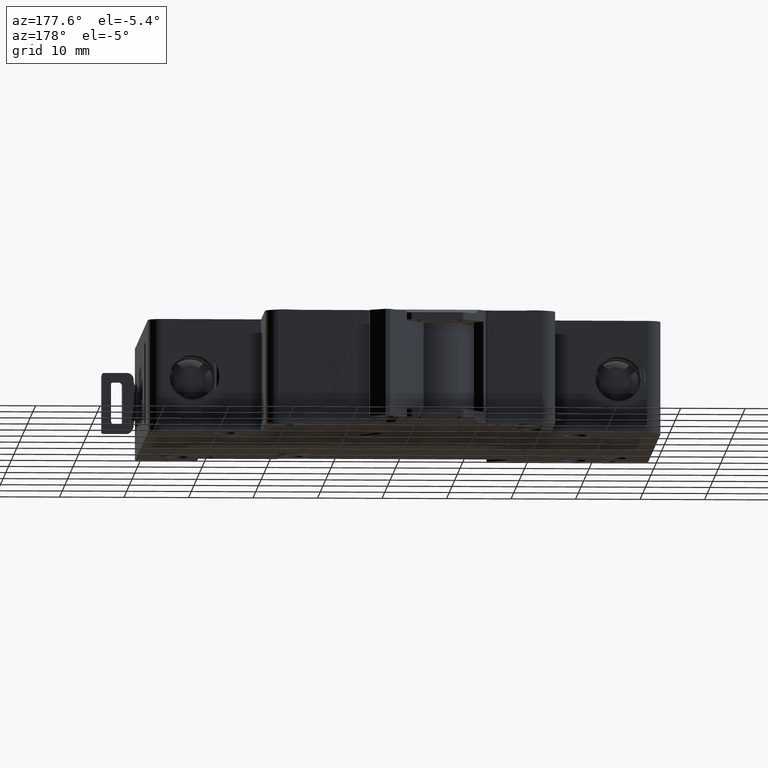
[diagram: clean part render]
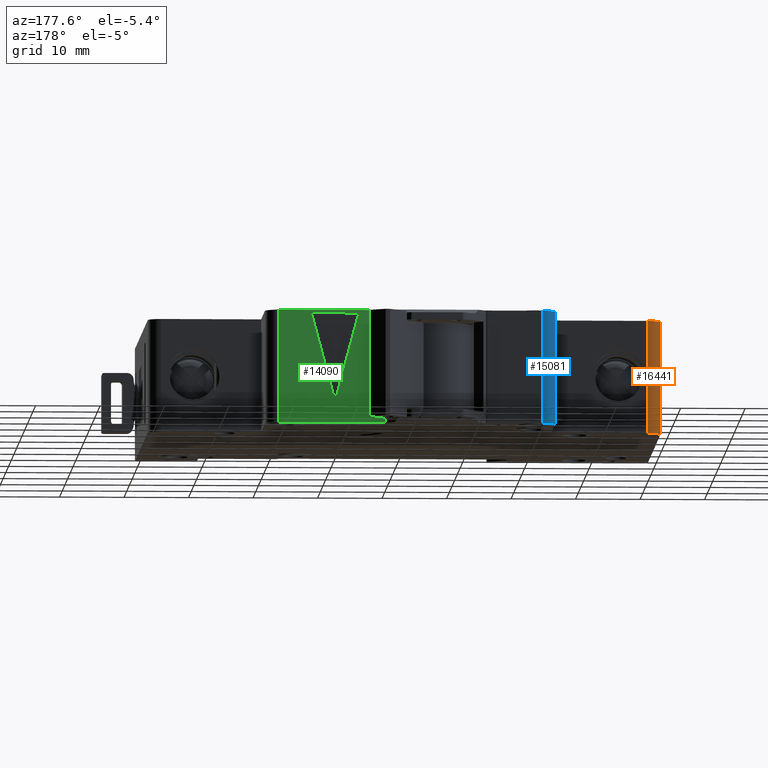
[diagram: same view with three faces highlighted in distinct colors, each labeled with its STEP entity id]
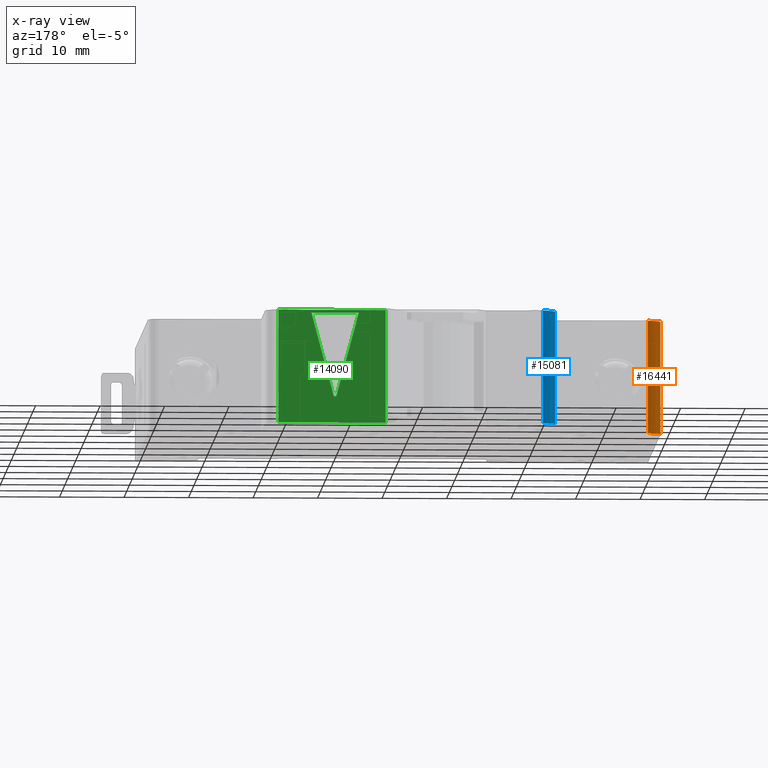
[diagram: x-ray of the same camera — body ghosted, the three highlighted faces saturated]
A machine part, auxiliary view with three faces highlighted in distinct colors.
The next image is the same camera in x-ray (body ghosted, the three faces saturated) — at least one of them is partly hidden behind the body in this view.
Their STEP definitions:

[orange] entity #16441 — the highlighted cylindrical surface (edge-blend (fillet) strip) has radius 2 mm, axis along (0, 0, 1).
#1033 = ORIENTED_EDGE ( 'NONE', *, *, #8266, .F. ) ;
#1095 = VECTOR ( 'NONE', #6787, 1000.000000000000000 ) ;
#1679 = DIRECTION ( 'NONE',  ( 0.0000000000000000000, -0.0000000000000000000, -1.000000000000000000 ) ) ;
#2830 = DIRECTION ( 'NONE',  ( 9.912705577014834400E-017, 1.281166259734572500E-031, 1.000000000000000000 ) ) ;
#3366 = CARTESIAN_POINT ( 'NONE',  ( 2.512500000000001500, 47.50000000000729000, 8.750000000000000000 ) ) ;
#3376 = CARTESIAN_POINT ( 'NONE',  ( 0.5124999999999999600, 47.50000000000729000, -8.749999999996021000 ) ) ;
#4652 = LINE ( 'NONE', #6737, #1095 ) ;
#4703 = DIRECTION ( 'NONE',  ( 1.000000000000000000, 0.0000000000000000000, 0.0000000000000000000 ) ) ;
#5454 = VECTOR ( 'NONE', #2830, 1000.000000000000000 ) ;
#5569 = VERTEX_POINT ( 'NONE', #3376 ) ;
#5706 = EDGE_LOOP ( 'NONE', ( #8901, #11539, #1033, #10463 ) ) ;
#5845 = EDGE_CURVE ( 'NONE', #13909, #5569, #4652, .T. ) ;
#6160 = CYLINDRICAL_SURFACE ( 'NONE', #11010, 2.000000000000000000 ) ;
#6322 = LINE ( 'NONE', #6842, #5454 ) ;
#6575 = DIRECTION ( 'NONE',  ( 1.000000000000000000, 0.0000000000000000000, -9.912705577014836800E-017 ) ) ;
#6599 = FACE_OUTER_BOUND ( 'NONE', #5706, .T. ) ;
#6737 = CARTESIAN_POINT ( 'NONE',  ( 0.5124999999999999600, 47.50000000000729000, -8.749999999996021000 ) ) ;
#6787 = DIRECTION ( 'NONE',  ( -9.912705577014834400E-017, -1.281166259734572500E-031, -1.000000000000000000 ) ) ;
#6842 = CARTESIAN_POINT ( 'NONE',  ( 2.512499999999999300, 49.50000000000729700, 8.749999999996017400 ) ) ;
#8266 = EDGE_CURVE ( 'NONE', #5569, #12456, #9526, .T. ) ;
#8341 = CARTESIAN_POINT ( 'NONE',  ( 0.5125000000000016200, 47.50000000000729000, 8.749999999996017400 ) ) ;
#8901 = ORIENTED_EDGE ( 'NONE', *, *, #9442, .F. ) ;
#9166 = CARTESIAN_POINT ( 'NONE',  ( 2.512500000000001100, 47.50000000000729000, -2.490567276225038300E-016 ) ) ;
#9442 = EDGE_CURVE ( 'NONE', #11936, #13909, #10512, .T. ) ;
#9526 = CIRCLE ( 'NONE', #12586, 2.000000000000000000 ) ;
#9622 = CARTESIAN_POINT ( 'NONE',  ( 2.512500000000000200, 47.50000000000729000, -8.750000000000000000 ) ) ;
#9972 = CARTESIAN_POINT ( 'NONE',  ( 2.512499999999997500, 49.50000000000729700, -8.750000000000000000 ) ) ;
#10202 = CARTESIAN_POINT ( 'NONE',  ( 2.512499999999999300, 49.50000000000729700, 8.750000000000000000 ) ) ;
#10401 = DIRECTION ( 'NONE',  ( 9.912705577014834400E-017, 1.281166259734572500E-031, 1.000000000000000000 ) ) ;
#10463 = ORIENTED_EDGE ( 'NONE', *, *, #5845, .F. ) ;
#10512 = CIRCLE ( 'NONE', #14280, 2.000000000000000000 ) ;
#10903 = DIRECTION ( 'NONE',  ( 1.000000000000000000, 0.0000000000000000000, 0.0000000000000000000 ) ) ;
#11010 = AXIS2_PLACEMENT_3D ( 'NONE', #9166, #10401, #6575 ) ;
#11539 = ORIENTED_EDGE ( 'NONE', *, *, #16570, .F. ) ;
#11936 = VERTEX_POINT ( 'NONE', #10202 ) ;
#12456 = VERTEX_POINT ( 'NONE', #9972 ) ;
#12496 = DIRECTION ( 'NONE',  ( -0.0000000000000000000, 0.0000000000000000000, 1.000000000000000000 ) ) ;
#12586 = AXIS2_PLACEMENT_3D ( 'NONE', #9622, #1679, #10903 ) ;
#13909 = VERTEX_POINT ( 'NONE', #8341 ) ;
#14280 = AXIS2_PLACEMENT_3D ( 'NONE', #3366, #12496, #4703 ) ;
#16441 = ADVANCED_FACE ( 'NONE', ( #6599 ), #6160, .T. ) ;
#16570 = EDGE_CURVE ( 'NONE', #12456, #11936, #6322, .T. ) ;

[blue] entity #15081 — the highlighted cylindrical surface (edge-blend (fillet) strip) has radius 2 mm, axis along (-0, -0, -1).
#124 = CARTESIAN_POINT ( 'NONE',  ( 17.50000000000000000, 63.50000000000330400, -8.750000000000000000 ) ) ;
#587 = CARTESIAN_POINT ( 'NONE',  ( 19.50000000000000000, 65.50000000000331100, -8.750000000000000000 ) ) ;
#966 = CARTESIAN_POINT ( 'NONE',  ( 17.50000000000000000, 63.50000000000330400, 8.750000000000000000 ) ) ;
#1016 = DIRECTION ( 'NONE',  ( -0.0000000000000000000, 0.0000000000000000000, 1.000000000000000000 ) ) ;
#1415 = CIRCLE ( 'NONE', #8889, 1.999999999999998200 ) ;
#1770 = FACE_OUTER_BOUND ( 'NONE', #13030, .T. ) ;
#1929 = VECTOR ( 'NONE', #2549, 1000.000000000000000 ) ;
#2203 = AXIS2_PLACEMENT_3D ( 'NONE', #2515, #11673, #3854 ) ;
#2359 = LINE ( 'NONE', #16764, #1929 ) ;
#2515 = CARTESIAN_POINT ( 'NONE',  ( 19.50000000000000000, 63.50000000000330400, 8.750000000000000000 ) ) ;
#2549 = DIRECTION ( 'NONE',  ( -0.0000000000000000000, -0.0000000000000000000, -1.000000000000000000 ) ) ;
#3222 = ORIENTED_EDGE ( 'NONE', *, *, #6955, .F. ) ;
#3521 = CARTESIAN_POINT ( 'NONE',  ( 19.50000000000000000, 63.50000000000330400, 8.750000000000000000 ) ) ;
#3854 = DIRECTION ( 'NONE',  ( 1.000000000000000000, 0.0000000000000000000, 0.0000000000000000000 ) ) ;
#4973 = EDGE_CURVE ( 'NONE', #6093, #9768, #9798, .T. ) ;
#5113 = DIRECTION ( 'NONE',  ( -0.0000000000000000000, -0.0000000000000000000, -1.000000000000000000 ) ) ;
#5147 = ORIENTED_EDGE ( 'NONE', *, *, #5771, .T. ) ;
#5771 = EDGE_CURVE ( 'NONE', #9149, #6754, #2359, .T. ) ;
#6093 = VERTEX_POINT ( 'NONE', #966 ) ;
#6754 = VERTEX_POINT ( 'NONE', #587 ) ;
#6955 = EDGE_CURVE ( 'NONE', #9149, #6093, #13926, .T. ) ;
#8889 = AXIS2_PLACEMENT_3D ( 'NONE', #8994, #1016, #10264 ) ;
#8961 = CARTESIAN_POINT ( 'NONE',  ( 19.50000000000000000, 65.50000000000331100, 8.750000000000000000 ) ) ;
#8994 = CARTESIAN_POINT ( 'NONE',  ( 19.50000000000000000, 63.50000000000330400, -8.750000000000000000 ) ) ;
#9149 = VERTEX_POINT ( 'NONE', #8961 ) ;
#9580 = EDGE_CURVE ( 'NONE', #6754, #9768, #1415, .T. ) ;
#9768 = VERTEX_POINT ( 'NONE', #124 ) ;
#9798 = LINE ( 'NONE', #16694, #12794 ) ;
#10264 = DIRECTION ( 'NONE',  ( 1.000000000000000000, 0.0000000000000000000, 0.0000000000000000000 ) ) ;
#11370 = DIRECTION ( 'NONE',  ( -1.000000000000000000, 0.0000000000000000000, 0.0000000000000000000 ) ) ;
#11446 = CYLINDRICAL_SURFACE ( 'NONE', #14591, 1.999999999999998200 ) ;
#11673 = DIRECTION ( 'NONE',  ( -0.0000000000000000000, 0.0000000000000000000, 1.000000000000000000 ) ) ;
#12357 = ORIENTED_EDGE ( 'NONE', *, *, #9580, .T. ) ;
#12571 = ORIENTED_EDGE ( 'NONE', *, *, #4973, .F. ) ;
#12660 = DIRECTION ( 'NONE',  ( -0.0000000000000000000, -0.0000000000000000000, -1.000000000000000000 ) ) ;
#12794 = VECTOR ( 'NONE', #5113, 1000.000000000000000 ) ;
#13030 = EDGE_LOOP ( 'NONE', ( #12357, #12571, #3222, #5147 ) ) ;
#13926 = CIRCLE ( 'NONE', #2203, 1.999999999999998200 ) ;
#14591 = AXIS2_PLACEMENT_3D ( 'NONE', #3521, #12660, #11370 ) ;
#15081 = ADVANCED_FACE ( 'NONE', ( #1770 ), #11446, .T. ) ;
#16694 = CARTESIAN_POINT ( 'NONE',  ( 17.50000000000000000, 63.50000000000330400, 8.750000000000000000 ) ) ;
#16764 = CARTESIAN_POINT ( 'NONE',  ( 19.50000000000000000, 65.50000000000331100, 8.750000000000000000 ) ) ;

[green] entity #14090 — the highlighted planar face has unit normal (-0, -1, 0).
#89 = ORIENTED_EDGE ( 'NONE', *, *, #8284, .T. ) ;
#288 = CARTESIAN_POINT ( 'NONE',  ( 43.84999999999801900, 65.50000000000332500, 8.750000000000000000 ) ) ;
#557 = VERTEX_POINT ( 'NONE', #3893 ) ;
#1187 = VECTOR ( 'NONE', #16628, 1000.000000000000000 ) ;
#1703 = EDGE_LOOP ( 'NONE', ( #7733, #12149, #9906, #3361 ) ) ;
#1737 = DIRECTION ( 'NONE',  ( 0.2588190451095149800, -6.471776195767395700E-016, 0.9659258262871942600 ) ) ;
#1893 = DIRECTION ( 'NONE',  ( -1.000000000000000000, 2.500502307714245400E-015, 0.0000000000000000000 ) ) ;
#2065 = VECTOR ( 'NONE', #1737, 999.9999999999998900 ) ;
#2104 = AXIS2_PLACEMENT_3D ( 'NONE', #15553, #7932, #16829 ) ;
#2642 = LINE ( 'NONE', #2882, #13442 ) ;
#2882 = CARTESIAN_POINT ( 'NONE',  ( 1.637829011552916400E-013, 65.50000000000342500, -8.750000000000000000 ) ) ;
#2894 = VECTOR ( 'NONE', #12526, 1000.000000000000000 ) ;
#2926 = CARTESIAN_POINT ( 'NONE',  ( 43.84999999999801900, 65.50000000000332500, 8.750000000000000000 ) ) ;
#2954 = ORIENTED_EDGE ( 'NONE', *, *, #7642, .T. ) ;
#3353 = VERTEX_POINT ( 'NONE', #10603 ) ;
#3361 = ORIENTED_EDGE ( 'NONE', *, *, #10112, .T. ) ;
#3893 = CARTESIAN_POINT ( 'NONE',  ( 60.49999999999850100, 65.50000000000328300, -8.750000000000000000 ) ) ;
#4269 = DIRECTION ( 'NONE',  ( -0.0000000000000000000, -0.0000000000000000000, -1.000000000000000000 ) ) ;
#4638 = AXIS2_PLACEMENT_3D ( 'NONE', #6177, #7503, #16416 ) ;
#4805 = PLANE ( 'NONE',  #4638 ) ;
#5212 = LINE ( 'NONE', #9678, #2065 ) ;
#5524 = DIRECTION ( 'NONE',  ( -1.000000000000000000, 2.500502307714245400E-015, 0.0000000000000000000 ) ) ;
#6022 = VERTEX_POINT ( 'NONE', #10045 ) ;
#6177 = CARTESIAN_POINT ( 'NONE',  ( 1.637829011552916400E-013, 65.50000000000342500, 8.750000000000000000 ) ) ;
#6472 = CARTESIAN_POINT ( 'NONE',  ( 60.49999999999850100, 65.50000000000328300, 8.750000000000000000 ) ) ;
#6582 = EDGE_LOOP ( 'NONE', ( #2954, #89, #15413, #11242 ) ) ;
#7343 = VERTEX_POINT ( 'NONE', #288 ) ;
#7452 = CARTESIAN_POINT ( 'NONE',  ( 51.45851854342753000, 65.50000000000331100, -4.523815752445998800 ) ) ;
#7483 = LINE ( 'NONE', #12798, #13852 ) ;
#7503 = DIRECTION ( 'NONE',  ( -2.500502307714245400E-015, -1.000000000000000000, 0.0000000000000000000 ) ) ;
#7642 = EDGE_CURVE ( 'NONE', #11846, #14395, #11554, .T. ) ;
#7733 = ORIENTED_EDGE ( 'NONE', *, *, #13805, .T. ) ;
#7932 = DIRECTION ( 'NONE',  ( -2.500502307714245400E-015, -1.000000000000000000, 0.0000000000000000000 ) ) ;
#8280 = LINE ( 'NONE', #2926, #14646 ) ;
#8284 = EDGE_CURVE ( 'NONE', #14395, #11665, #5212, .T. ) ;
#8603 = EDGE_CURVE ( 'NONE', #11665, #6022, #13286, .T. ) ;
#8665 = FACE_BOUND ( 'NONE', #6582, .T. ) ;
#9167 = EDGE_CURVE ( 'NONE', #6022, #11846, #7483, .T. ) ;
#9678 = CARTESIAN_POINT ( 'NONE',  ( 51.78051589208681800, 65.50000000000331100, -5.124547417353389800 ) ) ;
#9765 = CARTESIAN_POINT ( 'NONE',  ( 1.637829011552916400E-013, 65.50000000000342500, 8.750000000000000000 ) ) ;
#9801 = EDGE_CURVE ( 'NONE', #7343, #12256, #8280, .T. ) ;
#9906 = ORIENTED_EDGE ( 'NONE', *, *, #16759, .F. ) ;
#9941 = VECTOR ( 'NONE', #1893, 1000.000000000000000 ) ;
#9967 = CARTESIAN_POINT ( 'NONE',  ( 1.637829011552916400E-013, 65.50000000000342500, 8.299999999999977600 ) ) ;
#10045 = CARTESIAN_POINT ( 'NONE',  ( 48.02238746857550200, 65.50000000000331100, 8.299999999999977600 ) ) ;
#10112 = EDGE_CURVE ( 'NONE', #3353, #557, #11669, .T. ) ;
#10603 = CARTESIAN_POINT ( 'NONE',  ( 60.49999999999850100, 65.50000000000328300, 8.750000000000000000 ) ) ;
#10815 = CARTESIAN_POINT ( 'NONE',  ( 55.37761253142414800, 65.50000000000331100, 8.299999999999977600 ) ) ;
#11242 = ORIENTED_EDGE ( 'NONE', *, *, #9167, .T. ) ;
#11554 = CIRCLE ( 'NONE', #2104, 0.2500000000000418600 ) ;
#11665 = VERTEX_POINT ( 'NONE', #10815 ) ;
#11669 = LINE ( 'NONE', #6472, #1187 ) ;
#11846 = VERTEX_POINT ( 'NONE', #7452 ) ;
#12149 = ORIENTED_EDGE ( 'NONE', *, *, #9801, .F. ) ;
#12256 = VERTEX_POINT ( 'NONE', #15856 ) ;
#12526 = DIRECTION ( 'NONE',  ( -1.000000000000000000, 2.500502307714245400E-015, 0.0000000000000000000 ) ) ;
#12798 = CARTESIAN_POINT ( 'NONE',  ( 44.69299748319559000, 65.50000000000332500, 20.72545258329214200 ) ) ;
#13286 = LINE ( 'NONE', #9967, #2894 ) ;
#13442 = VECTOR ( 'NONE', #5524, 1000.000000000000000 ) ;
#13805 = EDGE_CURVE ( 'NONE', #557, #12256, #2642, .T. ) ;
#13852 = VECTOR ( 'NONE', #14050, 1000.000000000000000 ) ;
#14050 = DIRECTION ( 'NONE',  ( 0.2588190451094519200, -6.471776195765819000E-016, -0.9659258262872110200 ) ) ;
#14090 = ADVANCED_FACE ( 'NONE', ( #8665, #15414 ), #4805, .F. ) ;
#14395 = VERTEX_POINT ( 'NONE', #15784 ) ;
#14646 = VECTOR ( 'NONE', #4269, 1000.000000000000000 ) ;
#15413 = ORIENTED_EDGE ( 'NONE', *, *, #8603, .T. ) ;
#15414 = FACE_OUTER_BOUND ( 'NONE', #1703, .T. ) ;
#15553 = CARTESIAN_POINT ( 'NONE',  ( 51.69999999999937800, 65.50000000000331100, -4.459110991168623500 ) ) ;
#15784 = CARTESIAN_POINT ( 'NONE',  ( 51.94148145657128200, 65.50000000000331100, -4.523815752445765200 ) ) ;
#15856 = CARTESIAN_POINT ( 'NONE',  ( 43.84999999999801900, 65.50000000000332500, -8.750000000000000000 ) ) ;
#16416 = DIRECTION ( 'NONE',  ( 1.000000000000000000, -2.500502307714245400E-015, 0.0000000000000000000 ) ) ;
#16628 = DIRECTION ( 'NONE',  ( -0.0000000000000000000, -0.0000000000000000000, -1.000000000000000000 ) ) ;
#16698 = LINE ( 'NONE', #9765, #9941 ) ;
#16759 = EDGE_CURVE ( 'NONE', #3353, #7343, #16698, .T. ) ;
#16829 = DIRECTION ( 'NONE',  ( 1.000000000000000000, 0.0000000000000000000, 0.0000000000000000000 ) ) ;